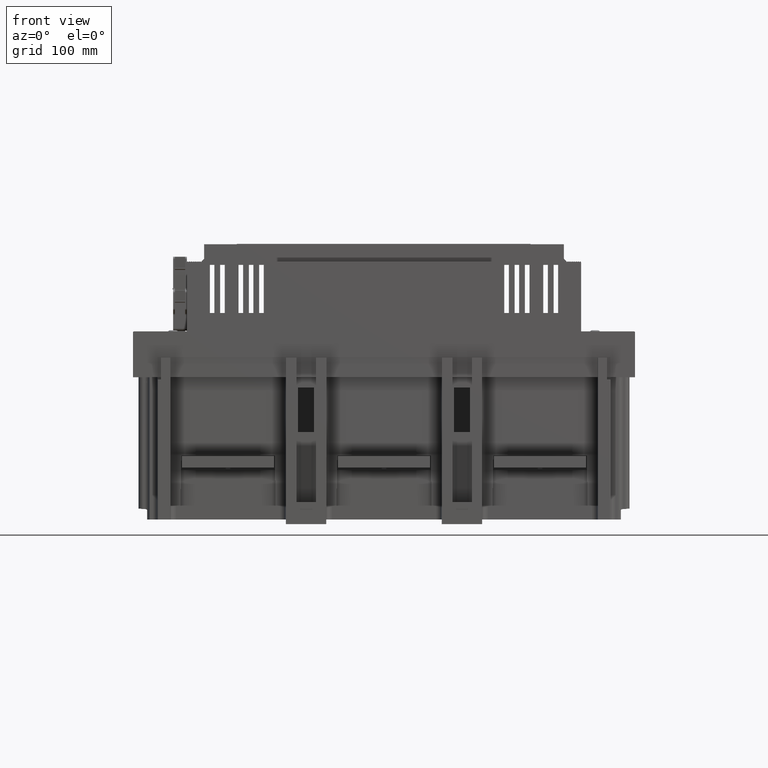
[diagram: clean part render]
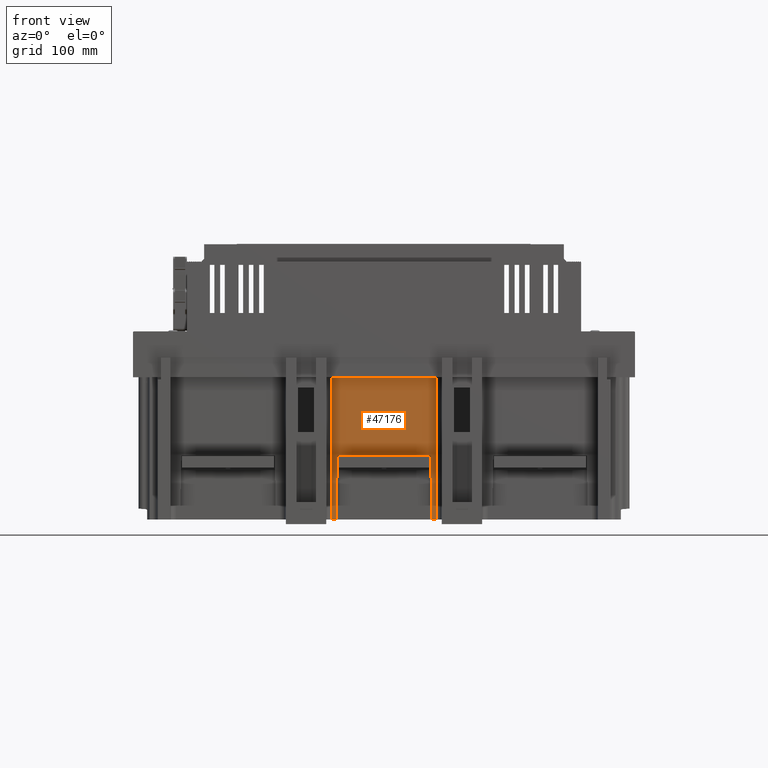
[diagram: same view with one face highlighted and labeled with its STEP entity id]
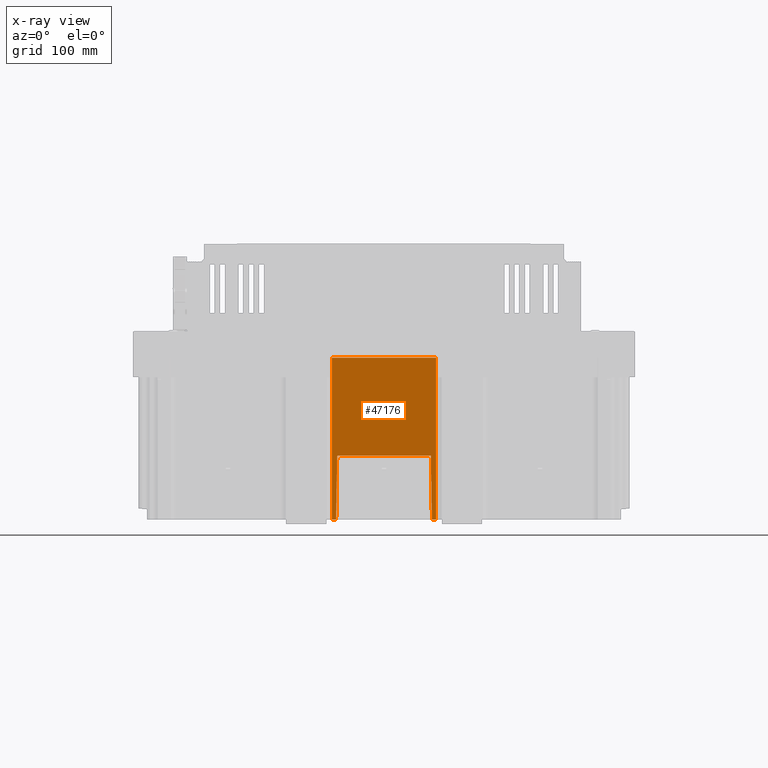
[diagram: x-ray of the same camera — body ghosted, the highlighted face saturated]
A machine part, front view. The second image highlights one B-rep face of the part: STEP entity #47176.
The next image is the same camera in x-ray: the body ghosted, the highlighted face saturated — about 0% of this face is hidden behind the body in this view.
In plain terms, the highlighted planar face has unit normal (0, -1, 0).
Its self-contained STEP definition (entity closure, byte-faithful):
#6083=DIRECTION('',(0.E0,0.E0,-1.E0));
#6084=VECTOR('',#6083,9.08E1);
#6085=CARTESIAN_POINT('',(1.45E2,-1.231E2,4.54E1));
#6086=LINE('',#6085,#6084);
#14916=DIRECTION('',(1.E0,0.E0,-2.993350248521E-14));
#14917=VECTOR('',#14916,1.41E2);
#14918=CARTESIAN_POINT('',(4.E0,-1.231E2,-4.54E1));
#14919=LINE('',#14918,#14917);
#14923=DIRECTION('',(0.E0,0.E0,-1.E0));
#14924=VECTOR('',#14923,3.681243896478E0);
#14925=CARTESIAN_POINT('',(4.E0,-1.231E2,4.54E1));
#14926=LINE('',#14925,#14924);
#14930=DIRECTION('',(1.E0,0.E0,0.E0));
#14931=VECTOR('',#14930,1.41E2);
#14932=CARTESIAN_POINT('',(4.E0,-1.231E2,4.54E1));
#14933=LINE('',#14932,#14931);
#14937=DIRECTION('',(0.E0,0.E0,-1.E0));
#14938=VECTOR('',#14937,3.681243896478E0);
#14939=CARTESIAN_POINT('',(4.E0,-1.231E2,-4.171875610352E1));
#14940=LINE('',#14939,#14938);
#14944=DIRECTION('',(0.E0,0.E0,-1.E0));
#14945=VECTOR('',#14944,8.15E1);
#14946=CARTESIAN_POINT('',(5.95E1,-1.231E2,4.075E1));
#14947=LINE('',#14946,#14945);
#14980=DIRECTION('',(-9.998476951564E-1,0.E0,-1.745240643731E-2));
#14981=VECTOR('',#14980,5.550845420644E1);
#14982=CARTESIAN_POINT('',(5.95E1,-1.231E2,-4.075E1));
#14983=LINE('',#14982,#14981);
#15015=DIRECTION('',(9.998476951564E-1,0.E0,-1.745240643731E-2));
#15016=VECTOR('',#15015,5.550845420644E1);
#15017=CARTESIAN_POINT('',(4.E0,-1.231E2,4.171875610352E1));
#15018=LINE('',#15017,#15016);
#31887=CARTESIAN_POINT('',(1.45E2,-1.231E2,4.54E1));
#31889=VERTEX_POINT('',#31887);
#31890=CARTESIAN_POINT('',(1.45E2,-1.231E2,-4.54E1));
#31891=VERTEX_POINT('',#31890);
#32886=CARTESIAN_POINT('',(5.95E1,-1.231E2,4.075E1));
#32887=CARTESIAN_POINT('',(5.95E1,-1.231E2,-4.075E1));
#32888=VERTEX_POINT('',#32886);
#32889=VERTEX_POINT('',#32887);
#35114=CARTESIAN_POINT('',(4.E0,-1.231E2,4.54E1));
#35116=VERTEX_POINT('',#35114);
#35118=CARTESIAN_POINT('',(4.E0,-1.231E2,4.171875610352E1));
#35119=VERTEX_POINT('',#35118);
#35120=CARTESIAN_POINT('',(4.E0,-1.231E2,-4.171875610352E1));
#35121=CARTESIAN_POINT('',(4.E0,-1.231E2,-4.54E1));
#35122=VERTEX_POINT('',#35120);
#35123=VERTEX_POINT('',#35121);
#47157=CARTESIAN_POINT('',(0.E0,-1.231E2,4.54E1));
#47158=DIRECTION('',(0.E0,-1.E0,0.E0));
#47159=DIRECTION('',(0.E0,0.E0,-1.E0));
#47160=AXIS2_PLACEMENT_3D('',#47157,#47158,#47159);
#47161=PLANE('',#47160);
#47162=ORIENTED_EDGE('',*,*,#38527,.F.);
#47164=ORIENTED_EDGE('',*,*,#47163,.T.);
#47165=ORIENTED_EDGE('',*,*,#40376,.T.);
#47166=ORIENTED_EDGE('',*,*,#47150,.F.);
#47167=ORIENTED_EDGE('',*,*,#38535,.F.);
#47169=ORIENTED_EDGE('',*,*,#47168,.F.);
#47171=ORIENTED_EDGE('',*,*,#47170,.F.);
#47173=ORIENTED_EDGE('',*,*,#47172,.F.);
#47174=EDGE_LOOP('',(#47162,#47164,#47165,#47166,#47167,#47169,#47171,#47173));
#47175=FACE_OUTER_BOUND('',#47174,.F.);
#38527=EDGE_CURVE('',#35116,#35119,#14926,.T.);
#38535=EDGE_CURVE('',#35122,#35123,#14940,.T.);
#40376=EDGE_CURVE('',#31889,#31891,#6086,.T.);
#47150=EDGE_CURVE('',#35123,#31891,#14919,.T.);
#47163=EDGE_CURVE('',#35116,#31889,#14933,.T.);
#47168=EDGE_CURVE('',#32889,#35122,#14983,.T.);
#47170=EDGE_CURVE('',#32888,#32889,#14947,.T.);
#47172=EDGE_CURVE('',#35119,#32888,#15018,.T.);
#47176=ADVANCED_FACE('',(#47175),#47161,.T.);